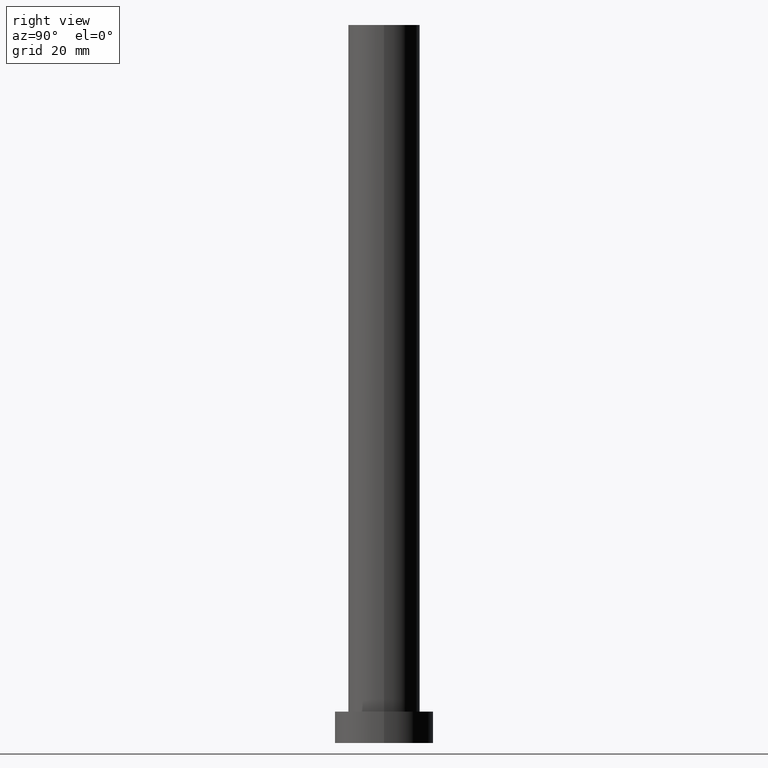
[diagram: clean part render]
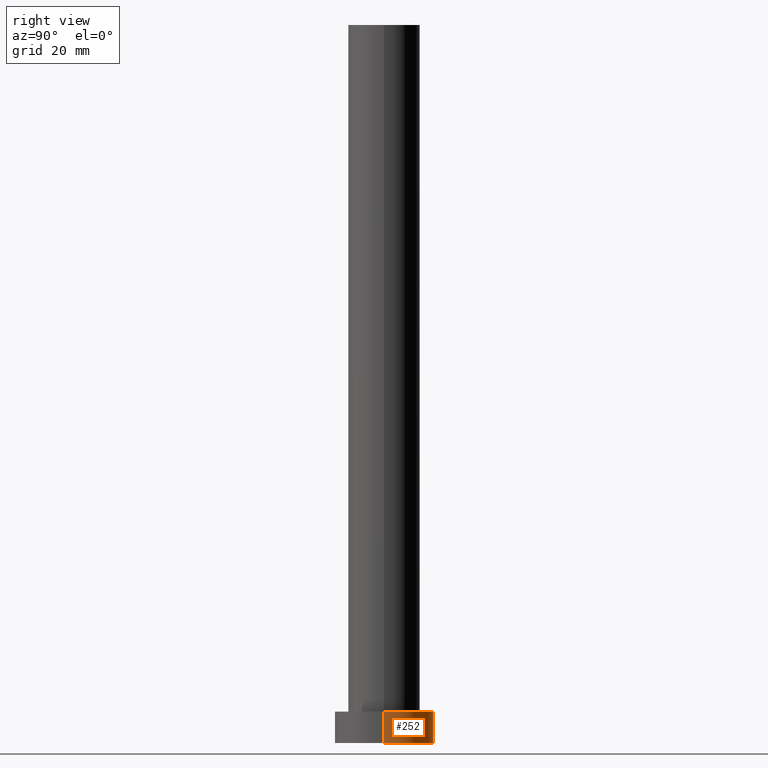
[diagram: same view with one face highlighted and labeled with its STEP entity id]
A machine part, right view. The second image highlights one B-rep face of the part: STEP entity #252.
In plain terms, the highlighted cylindrical surface (partial cylindrical patch) has radius 11 mm, axis along (-0, -0, -1).
Its self-contained STEP definition (entity closure, byte-faithful):
#1 = DIRECTION ( 'NONE',  ( 1.000000000000000000, 0.000000000000000000, 0.000000000000000000 ) ) ;
#2 = AXIS2_PLACEMENT_3D ( 'NONE', #243, #54, #1 ) ;
#3 = DIRECTION ( 'NONE',  ( -0.000000000000000000, -0.000000000000000000, -1.000000000000000000 ) ) ;
#4 = LINE ( 'NONE', #25, #189 ) ;
#12 = CARTESIAN_POINT ( 'NONE',  ( 0.000000000000000000, 0.000000000000000000, 7.000000000000000000 ) ) ;
#18 = EDGE_CURVE ( 'NONE', #234, #22, #4, .T. ) ;
#22 = VERTEX_POINT ( 'NONE', #119 ) ;
#23 = VECTOR ( 'NONE', #107, 1000.000000000000000 ) ;
#25 = CARTESIAN_POINT ( 'NONE',  ( -11.00000000000000000, 0.000000000000000000, 7.000000000000000000 ) ) ;
#26 = ORIENTED_EDGE ( 'NONE', *, *, #30, .T. ) ;
#29 = FACE_OUTER_BOUND ( 'NONE', #209, .T. ) ;
#30 = EDGE_CURVE ( 'NONE', #74, #194, #163, .T. ) ;
#36 = ORIENTED_EDGE ( 'NONE', *, *, #154, .T. ) ;
#39 = EDGE_CURVE ( 'NONE', #74, #234, #112, .T. ) ;
#54 = DIRECTION ( 'NONE',  ( 0.000000000000000000, 0.000000000000000000, 1.000000000000000000 ) ) ;
#57 = DIRECTION ( 'NONE',  ( 1.000000000000000000, 0.000000000000000000, 0.000000000000000000 ) ) ;
#72 = ORIENTED_EDGE ( 'NONE', *, *, #18, .F. ) ;
#74 = VERTEX_POINT ( 'NONE', #121 ) ;
#80 = CARTESIAN_POINT ( 'NONE',  ( 0.000000000000000000, 0.000000000000000000, 7.000000000000000000 ) ) ;
#89 = CIRCLE ( 'NONE', #2, 11.00000000000000000 ) ;
#94 = AXIS2_PLACEMENT_3D ( 'NONE', #12, #169, #208 ) ;
#107 = DIRECTION ( 'NONE',  ( -0.000000000000000000, -0.000000000000000000, -1.000000000000000000 ) ) ;
#111 = CARTESIAN_POINT ( 'NONE',  ( -11.00000000000000000, 0.000000000000000000, 7.000000000000000000 ) ) ;
#112 = CIRCLE ( 'NONE', #225, 11.00000000000000000 ) ;
#119 = CARTESIAN_POINT ( 'NONE',  ( -11.00000000000000000, 0.000000000000000000, 0.000000000000000000 ) ) ;
#121 = CARTESIAN_POINT ( 'NONE',  ( 11.00000000000000000, 1.347111479062088405E-15, 7.000000000000000000 ) ) ;
#139 = DIRECTION ( 'NONE',  ( 0.000000000000000000, 0.000000000000000000, 1.000000000000000000 ) ) ;
#154 = EDGE_CURVE ( 'NONE', #194, #22, #89, .T. ) ;
#163 = LINE ( 'NONE', #242, #23 ) ;
#169 = DIRECTION ( 'NONE',  ( -0.000000000000000000, -0.000000000000000000, -1.000000000000000000 ) ) ;
#181 = ORIENTED_EDGE ( 'NONE', *, *, #39, .F. ) ;
#188 = CYLINDRICAL_SURFACE ( 'NONE', #94, 11.00000000000000000 ) ;
#189 = VECTOR ( 'NONE', #3, 1000.000000000000000 ) ;
#190 = CARTESIAN_POINT ( 'NONE',  ( 11.00000000000000000, 1.347111479062088405E-15, 0.000000000000000000 ) ) ;
#194 = VERTEX_POINT ( 'NONE', #190 ) ;
#208 = DIRECTION ( 'NONE',  ( -1.000000000000000000, 0.000000000000000000, 0.000000000000000000 ) ) ;
#209 = EDGE_LOOP ( 'NONE', ( #181, #26, #36, #72 ) ) ;
#225 = AXIS2_PLACEMENT_3D ( 'NONE', #80, #139, #57 ) ;
#234 = VERTEX_POINT ( 'NONE', #111 ) ;
#242 = CARTESIAN_POINT ( 'NONE',  ( 11.00000000000000000, 1.347111479062088405E-15, 7.000000000000000000 ) ) ;
#243 = CARTESIAN_POINT ( 'NONE',  ( 0.000000000000000000, 0.000000000000000000, 0.000000000000000000 ) ) ;
#252 = ADVANCED_FACE ( 'NONE', ( #29 ), #188, .T. ) ;